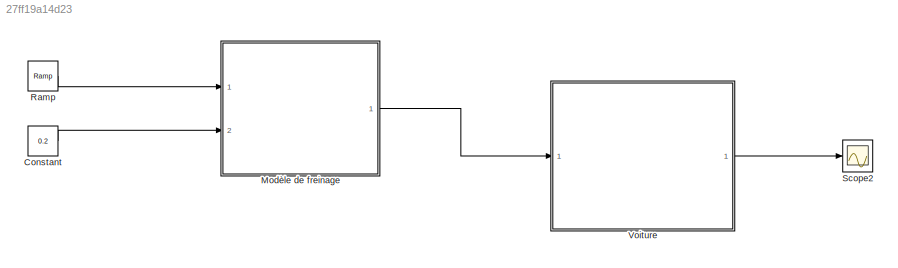
MODEL slx_27ff19a14d23
KIND model
CONFIG AbsTol = auto
CONFIG EnableMultiTasking = off
CONFIG FixedStep = auto
CONFIG InitFcn = ABS_config
CONFIG MaxStep = auto
CONFIG MinStep = auto
CONFIG RelTol = 1e-3
CONFIG SampleTimeConstraint = Unconstrained
CONFIG Solver = VariableStepAuto
CONFIG SolverName = VariableStepAuto
CONFIG StartTime = 0.0
CONFIG StopTime = 10
BLOCK [Constant] Constant
  Value = 0.2
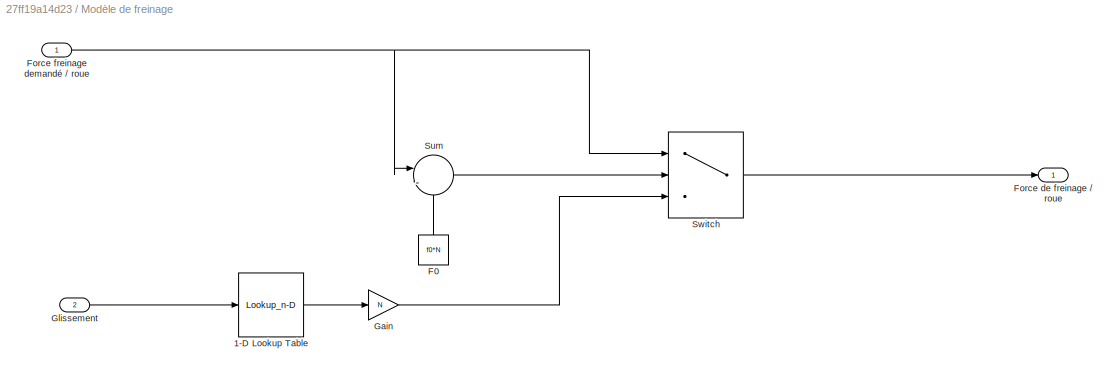
BLOCK [SubSystem] Modèle de freinage
  Ports = [2, 1]
  RequestExecContextInheritance = off
  Variant = off
BLOCK [Lookup_n-D] Modèle de freinage/1-D Lookup Table
  BreakpointsForDimension1 = [0,0.025,0.05,0.1,0.15,0.2,0.25,0.3,0.35,0.4,0.45,0.5,0.55,0.6,0.65,0.7,0.75,0.8,0.85,0.9,0.95,1]
  InternalRulePriority = Speed
  NumberOfTableDimensions = 1
  Ports = [1, 1]
  RndMeth = Simplest
  Table = [0,0.34,0.6,0.86,0.91,0.86,0.83,0.76,0.72,0.71,0.7,0.68,0.67,0.66,0.65,0.64,0.63,0.63,0.62,0.615,0.61,0.61]
BLOCK [Constant] Modèle de freinage/F0
  Value = f0*N
BLOCK [Outport] Modèle de freinage/Force de freinage // roue
  IconDisplay = Port number
BLOCK [Inport] Modèle de freinage/Force freinage demandé // roue
  IconDisplay = Port number
BLOCK [Gain] Modèle de freinage/Gain
  Gain = N
  OutDataTypeStr = Inherit: Inherit via internal rule
  ParamDataTypeStr = Inherit: Inherit via internal rule
  SaturateOnIntegerOverflow = off
BLOCK [Inport] Modèle de freinage/Glissement
  IconDisplay = Port number
  Port = 2
BLOCK [Sum] Modèle de freinage/Sum
  IconShape = round
  InputSameDT = off
  Inputs = |-+
  OutDataTypeStr = Inherit: Inherit via internal rule
  Ports = [2, 1]
  SaturateOnIntegerOverflow = off
BLOCK [Switch] Modèle de freinage/Switch
  InputSameDT = off
  SaturateOnIntegerOverflow = off
BLOCK [Reference] Ramp  REF=simulink/Sources/Ramp
  Ports = [0, 1]
  SourceBlock = simulink/Sources/Ramp
  SourceProductBaseCode = SL
  SourceProductName = Simulink
  SourceType = Ramp
BLOCK [Scope] Scope2
  NumInputPorts = 1
  Ports = [1]
  ScopeSpecificationString = Simulink.scopes.TimeScopeBlockCfg('CurrentConfiguration', extmgr.ConfigurationSet(extmgr.Configuration('Core','General UI',true),extmgr.Configuration('Core','Source UI',true),extmgr.Configuration('Sources','WiredSimulink',true,'DataLoggingVariableName','ScopeData2'),extmgr.Configuration('Visuals','Time Domain',true,'SerializedDisplays',{struct('MinYLimReal','78.8104','MaxYLimReal','102.3544','YLab...<+1425ch>
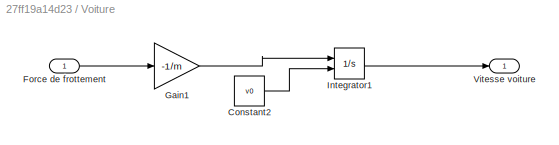
BLOCK [SubSystem] Voiture
  Ports = [1, 1]
  RequestExecContextInheritance = off
  Variant = off
BLOCK [Constant] Voiture/Constant2
  Value = v0
BLOCK [Inport] Voiture/Force de frottement
  IconDisplay = Port number
BLOCK [Gain] Voiture/Gain1
  Gain = -1/m
  OutDataTypeStr = Inherit: Inherit via internal rule
  ParamDataTypeStr = Inherit: Inherit via internal rule
  SaturateOnIntegerOverflow = off
BLOCK [Integrator] Voiture/Integrator1
  InitialConditionSource = external
  Ports = [2, 1]
BLOCK [Outport] Voiture/Vitesse voiture
  IconDisplay = Port number
LINE Constant:1 -> Modèle de freinage:2
LINE Modèle de freinage/1-D Lookup Table:1 -> Modèle de freinage/Gain:1
LINE Modèle de freinage/F0:1 -> Modèle de freinage/Sum:2
NET Modèle de freinage/Force freinage demandé // roue:1 -> Modèle de freinage/Sum:1, Modèle de freinage/Switch:1
LINE Modèle de freinage/Gain:1 -> Modèle de freinage/Switch:3
LINE Modèle de freinage/Glissement:1 -> Modèle de freinage/1-D Lookup Table:1
LINE Modèle de freinage/Sum:1 -> Modèle de freinage/Switch:2
LINE Modèle de freinage/Switch:1 -> Modèle de freinage/Force de freinage // roue:1
LINE Modèle de freinage:1 -> Voiture:1
LINE Ramp:1 -> Modèle de freinage:1
LINE Voiture/Constant2:1 -> Voiture/Integrator1:2
LINE Voiture/Force de frottement:1 -> Voiture/Gain1:1
LINE Voiture/Gain1:1 -> Voiture/Integrator1:1
LINE Voiture/Integrator1:1 -> Voiture/Vitesse voiture:1
LINE Voiture:1 -> Scope2:1
note: NET lines group one-source signal fan-out (src -> all destinations, sorted); 1:1 wires keep LINE
